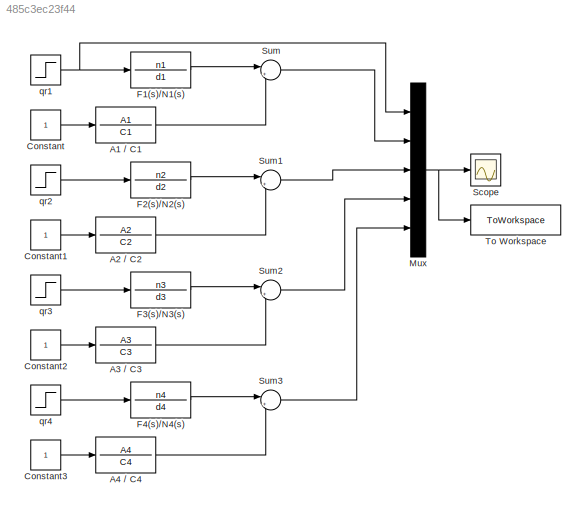
MODEL slx_485c3ec23f44
KIND model
CONFIG AbsTol = auto
CONFIG EnableMultiTasking = off
CONFIG FixedStep = auto
CONFIG MaxStep = auto
CONFIG MinStep = auto
CONFIG RelTol = 1e-3
CONFIG SampleTimeConstraint = Unconstrained
CONFIG Solver = VariableStepAuto
CONFIG SolverName = VariableStepAuto
CONFIG StartTime = 0.0
CONFIG StopTime = 2
BLOCK [TransferFcn] A1 // C1
  Denominator = C1
  Numerator = A1
BLOCK [TransferFcn] A2 // C2 
  Denominator = C2
  Numerator = A2
BLOCK [TransferFcn] A3 // C3 
  Denominator = C3
  Numerator = A3
BLOCK [TransferFcn] A4 // C4
  Denominator = C4
  Numerator = A4
BLOCK [Constant] Constant
BLOCK [Constant] Constant1
BLOCK [Constant] Constant2
BLOCK [Constant] Constant3
BLOCK [TransferFcn] F1(s)//N1(s)
  Denominator = d1
  Numerator = n1
BLOCK [TransferFcn] F2(s)//N2(s)
  Denominator = d2
  Numerator = n2
BLOCK [TransferFcn] F3(s)//N3(s)
  Denominator = d3
  Numerator = n3
BLOCK [TransferFcn] F4(s)//N4(s)
  Denominator = d4
  Numerator = n4
BLOCK [Mux] Mux
  DisplayOption = bar
  Inputs = 5
  Ports = [5, 1]
BLOCK [Scope] Scope
  Floating = off
  NumInputPorts = 1
  Ports = [1]
  ScopeSpecificationString = Simulink.scopes.TimeScopeBlockCfg('CurrentConfiguration', extmgr.ConfigurationSet(extmgr.Configuration('Core','General UI',true),extmgr.Configuration('Core','Source UI',true),extmgr.Configuration('Sources','WiredSimulink',true),extmgr.Configuration('Visuals','Time Domain',true,'SerializedDisplays',{struct('MinYLimReal','-0.05546','MaxYLimReal','0.38597','YLabelReal','','MinYLimMag','0.00000','MaxY...<+1536ch>
BLOCK [Sum] Sum
  IconShape = round
  InputSameDT = off
  Inputs = |+-
  OutDataTypeStr = Inherit: Inherit via internal rule
  Ports = [2, 1]
  SaturateOnIntegerOverflow = off
BLOCK [Sum] Sum1
  IconShape = round
  InputSameDT = off
  Inputs = |+-
  OutDataTypeStr = Inherit: Inherit via internal rule
  Ports = [2, 1]
  SaturateOnIntegerOverflow = off
BLOCK [Sum] Sum2
  IconShape = round
  InputSameDT = off
  Inputs = |+-
  OutDataTypeStr = Inherit: Inherit via internal rule
  Ports = [2, 1]
  SaturateOnIntegerOverflow = off
BLOCK [Sum] Sum3
  IconShape = round
  InputSameDT = off
  Inputs = |+-
  OutDataTypeStr = Inherit: Inherit via internal rule
  Ports = [2, 1]
  SaturateOnIntegerOverflow = off
BLOCK [ToWorkspace] To Workspace
  FixptAsFi = on
  MaxDataPoints = inf
  Ports = [1]
  SampleTime = -1
  VariableName = simout
BLOCK [Step] qr1
  After = 0.35
  SampleTime = 0
  Time = 0.5
BLOCK [Step] qr2
  After = 0.35
  SampleTime = 0
  Time = 0.5
BLOCK [Step] qr3
  After = 0.35
  SampleTime = 0
  Time = 0.5
BLOCK [Step] qr4
  After = 0.35
  SampleTime = 0
  Time = 0.5
LINE A1 // C1:1 -> Sum:2
LINE A2 // C2 :1 -> Sum1:2
LINE A3 // C3 :1 -> Sum2:2
LINE A4 // C4:1 -> Sum3:2
LINE Constant1:1 -> A2 // C2 :1
LINE Constant2:1 -> A3 // C3 :1
LINE Constant3:1 -> A4 // C4:1
LINE Constant:1 -> A1 // C1:1
LINE F1(s)//N1(s):1 -> Sum:1
LINE F2(s)//N2(s):1 -> Sum1:1
LINE F3(s)//N3(s):1 -> Sum2:1
LINE F4(s)//N4(s):1 -> Sum3:1
NET Mux:1 -> Scope:1, To Workspace:1
LINE Sum1:1 -> Mux:3
LINE Sum2:1 -> Mux:4
LINE Sum3:1 -> Mux:5
LINE Sum:1 -> Mux:2
NET qr1:1 -> F1(s)//N1(s):1, Mux:1
LINE qr2:1 -> F2(s)//N2(s):1
LINE qr3:1 -> F3(s)//N3(s):1
LINE qr4:1 -> F4(s)//N4(s):1
note: NET lines group one-source signal fan-out (src -> all destinations, sorted); 1:1 wires keep LINE
